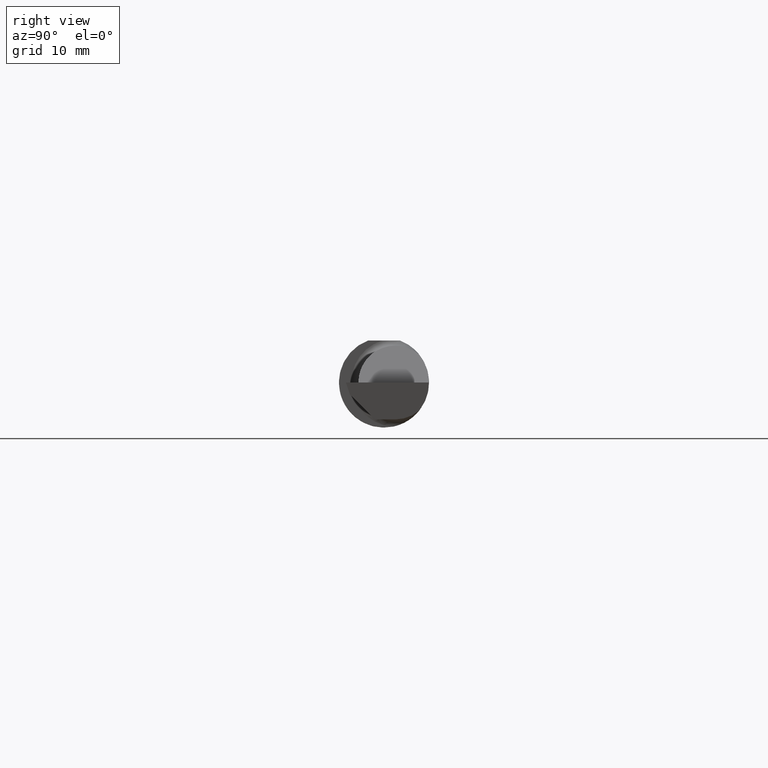
[diagram: clean part render]
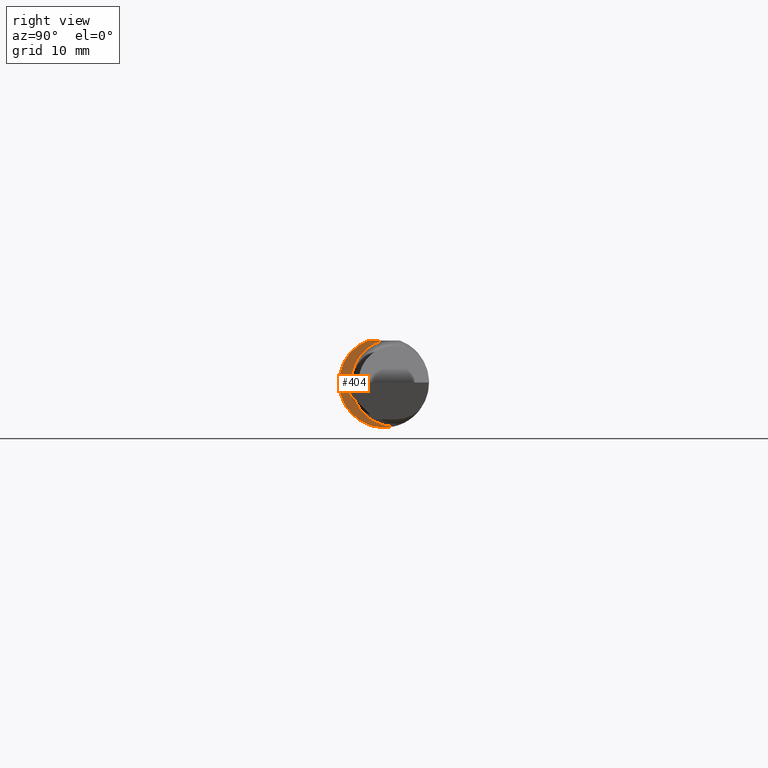
[diagram: same view with one face highlighted and labeled with its STEP entity id]
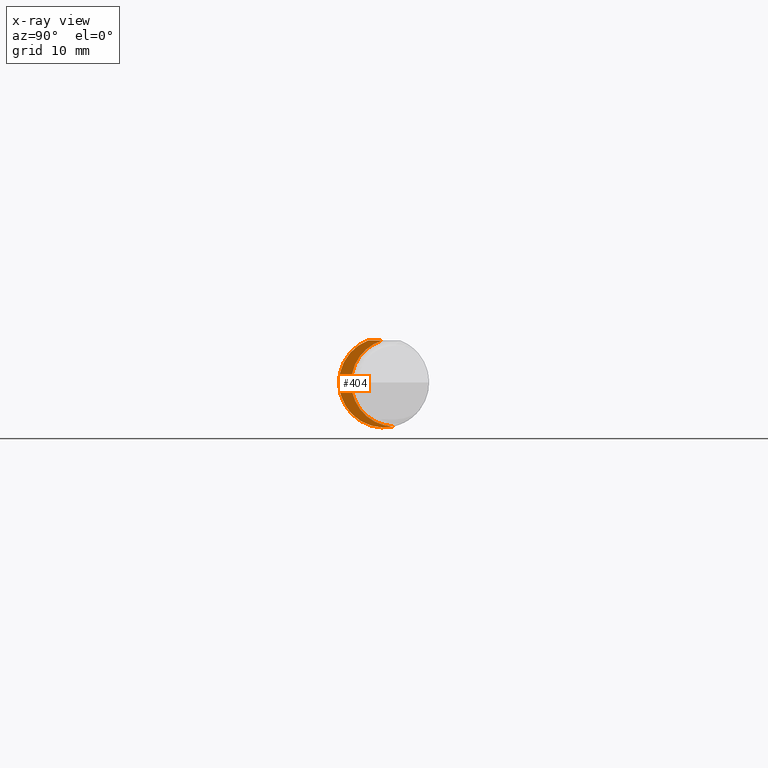
[diagram: x-ray of the same camera — body ghosted, the highlighted face saturated]
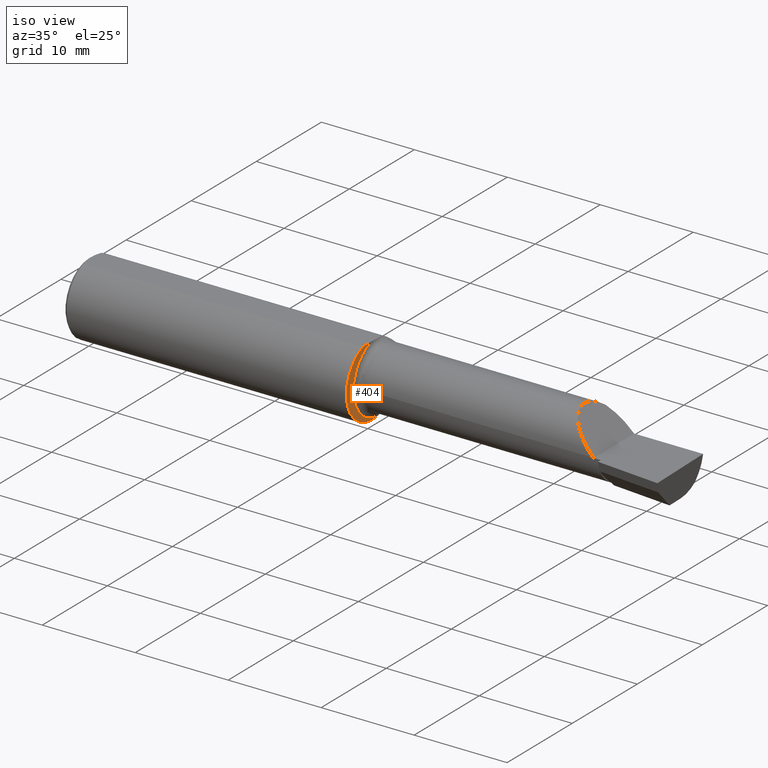
[diagram: same view with one face highlighted and labeled with its STEP entity id]
A machine part, right view. The second image highlights one B-rep face of the part: STEP entity #404.
The next image is the same camera in x-ray: the body ghosted, the highlighted face saturated — about 5% of this face is hidden behind the body in this view.
A second angle (iso view) of the same face is appended — the face is thin or edge-on in the first view.
In plain terms, the highlighted planar face has unit normal (-1, 0, 0).
Its self-contained STEP definition (entity closure, byte-faithful):
#16 = VERTEX_POINT ( 'NONE', #379 ) ;
#30 = CARTESIAN_POINT ( 'NONE',  ( 1.199999999999999956, 0.03899999999999998607, 0.000000000000000000 ) ) ;
#35 = ORIENTED_EDGE ( 'NONE', *, *, #653, .T. ) ;
#91 = AXIS2_PLACEMENT_3D ( 'NONE', #500, #396, #179 ) ;
#98 = LINE ( 'NONE', #572, #199 ) ;
#101 = CIRCLE ( 'NONE', #91, 0.1560999999999999888 ) ;
#103 = AXIS2_PLACEMENT_3D ( 'NONE', #30, #681, #156 ) ;
#127 = CIRCLE ( 'NONE', #625, 0.1529000000000001191 ) ;
#156 = DIRECTION ( 'NONE',  ( 0.000000000000000000, -1.000000000000000000, 0.000000000000000000 ) ) ;
#179 = DIRECTION ( 'NONE',  ( 0.000000000000000000, -1.000000000000000000, 0.000000000000000000 ) ) ;
#195 = DIRECTION ( 'NONE',  ( -1.000000000000000000, 6.829619984160658046E-18, -0.000000000000000000 ) ) ;
#199 = VECTOR ( 'NONE', #329, 39.37007874015748143 ) ;
#201 = VERTEX_POINT ( 'NONE', #295 ) ;
#220 = DIRECTION ( 'NONE',  ( -1.000000000000000000, 6.829619984160658046E-18, 0.000000000000000000 ) ) ;
#223 = AXIS2_PLACEMENT_3D ( 'NONE', #520, #220, #643 ) ;
#253 = FACE_OUTER_BOUND ( 'NONE', #453, .T. ) ;
#279 = CARTESIAN_POINT ( 'NONE',  ( 1.199999999999999956, 0.03217692307692246456, -0.1527476861405821784 ) ) ;
#295 = CARTESIAN_POINT ( 'NONE',  ( 1.199999999999999956, -0.05497272050753900657, 0.1461000000000000076 ) ) ;
#306 = VERTEX_POINT ( 'NONE', #592 ) ;
#329 = DIRECTION ( 'NONE',  ( 6.829619984160658046E-18, 1.000000000000000000, -1.656870447394628111E-16 ) ) ;
#334 = EDGE_CURVE ( 'NONE', #201, #16, #98, .T. ) ;
#355 = EDGE_CURVE ( 'NONE', #427, #306, #127, .T. ) ;
#379 = CARTESIAN_POINT ( 'NONE',  ( 1.199999999999999956, -0.006091019061449954100, 0.1460999999999999799 ) ) ;
#396 = DIRECTION ( 'NONE',  ( -1.000000000000000000, 6.829619984160658046E-18, -0.000000000000000000 ) ) ;
#403 = ORIENTED_EDGE ( 'NONE', *, *, #355, .T. ) ;
#404 = ADVANCED_FACE ( 'NONE', ( #253 ), #686, .F. ) ;
#416 = ORIENTED_EDGE ( 'NONE', *, *, #499, .F. ) ;
#427 = VERTEX_POINT ( 'NONE', #279 ) ;
#453 = EDGE_LOOP ( 'NONE', ( #403, #35, #510, #416 ) ) ;
#499 = EDGE_CURVE ( 'NONE', #427, #201, #101, .T. ) ;
#500 = CARTESIAN_POINT ( 'NONE',  ( 1.199999999999999956, 0.000000000000000000, 0.000000000000000000 ) ) ;
#510 = ORIENTED_EDGE ( 'NONE', *, *, #334, .F. ) ;
#520 = CARTESIAN_POINT ( 'NONE',  ( 1.199999999999999956, -0.1139000000000001261, 0.000000000000000000 ) ) ;
#556 = CIRCLE ( 'NONE', #103, 0.1529000000000001191 ) ;
#569 = DIRECTION ( 'NONE',  ( 0.000000000000000000, -1.000000000000000000, 0.000000000000000000 ) ) ;
#572 = CARTESIAN_POINT ( 'NONE',  ( 1.199999999999999956, 0.2061000000000000332, 0.1460999999999999521 ) ) ;
#592 = CARTESIAN_POINT ( 'NONE',  ( 1.199999999999999956, -0.1139000000000001539, 0.000000000000000000 ) ) ;
#625 = AXIS2_PLACEMENT_3D ( 'NONE', #695, #195, #569 ) ;
#643 = DIRECTION ( 'NONE',  ( -6.829619984160658046E-18, -1.000000000000000000, 0.000000000000000000 ) ) ;
#653 = EDGE_CURVE ( 'NONE', #306, #16, #556, .T. ) ;
#681 = DIRECTION ( 'NONE',  ( -1.000000000000000000, 6.829619984160658046E-18, -0.000000000000000000 ) ) ;
#686 = PLANE ( 'NONE',  #223 ) ;
#695 = CARTESIAN_POINT ( 'NONE',  ( 1.199999999999999956, 0.03899999999999998607, 0.000000000000000000 ) ) ;